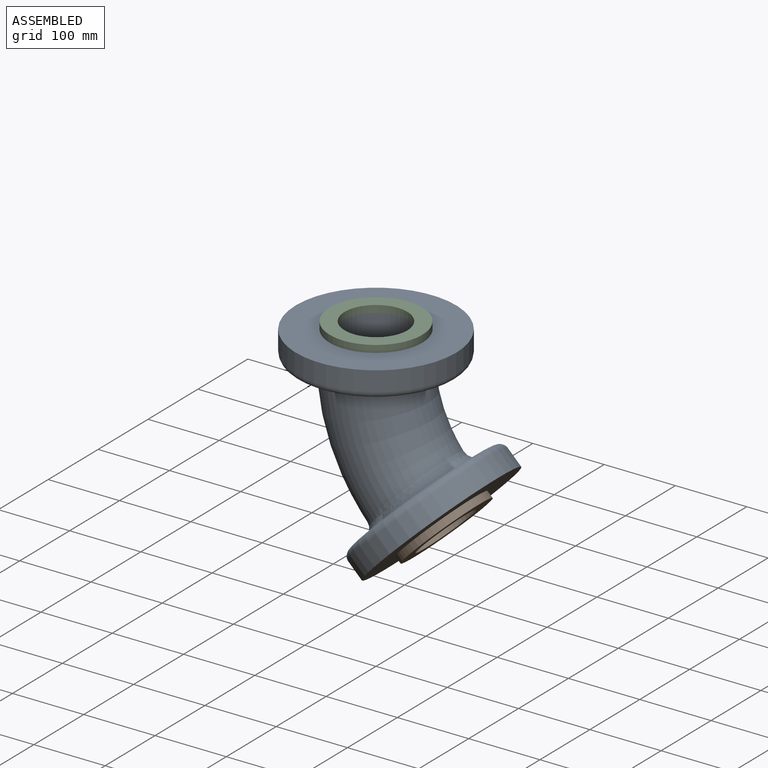
[diagram: assembled view]
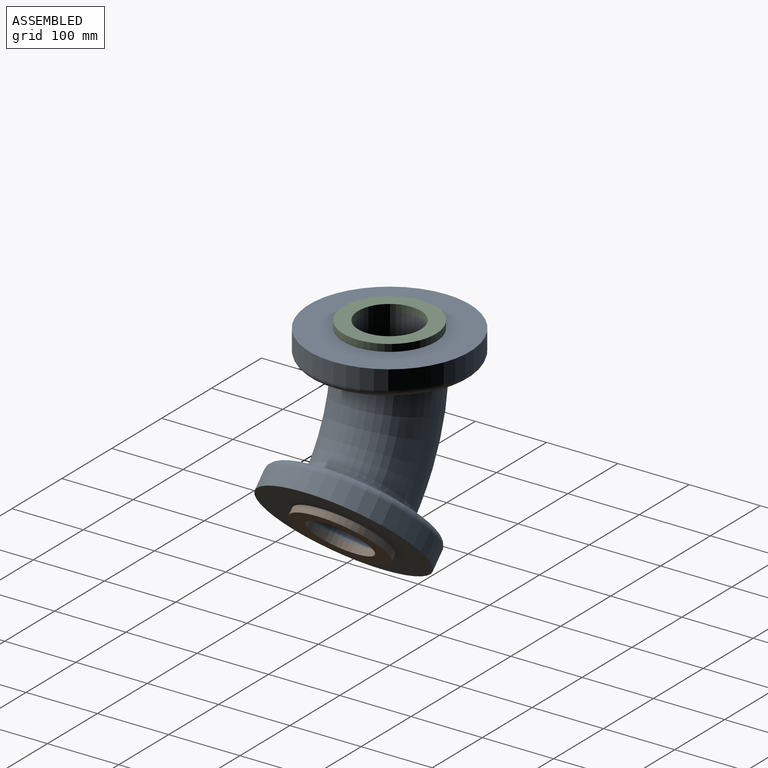
[diagram: assembled view, second angle]
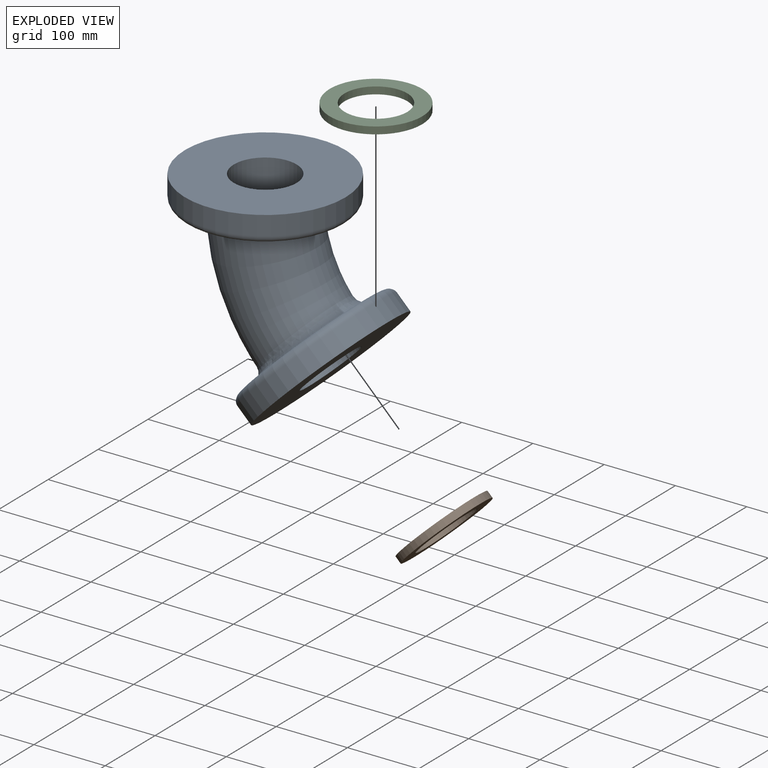
[diagram: exploded view]
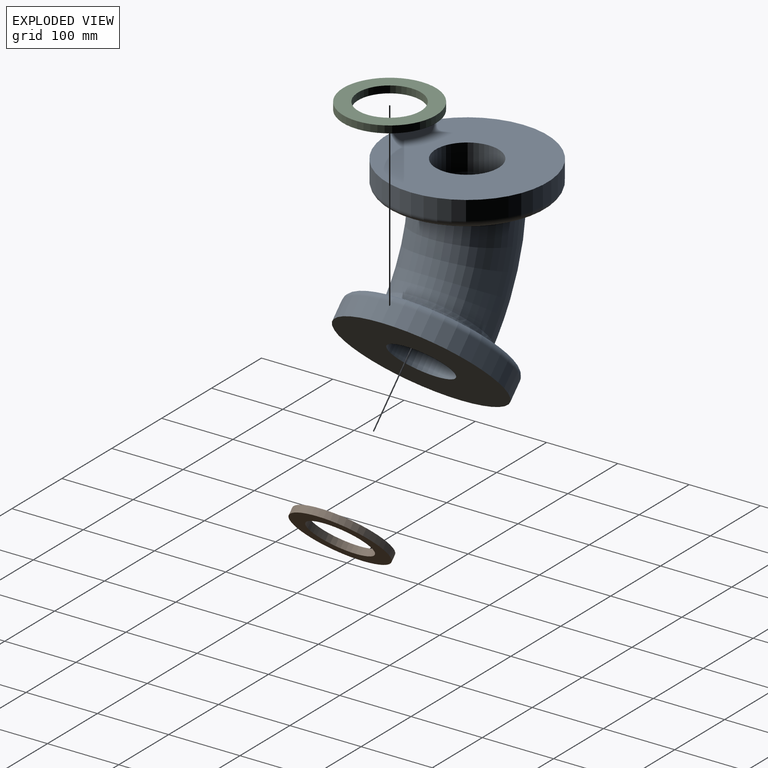
[diagram: exploded view, second angle]
ASSEMBLY  parts=3 mates=2
PART A: 14 faces, bbox 293.4x243.5x301.8 mm
  f0: torus R=225mm, axis (0,-1,0), area 48854.5mm2, adj f2,f7
  f1: torus R=225mm, axis (0,-1,0), area 62957.2mm2, adj f10,f11
  f2: cylinder r=44mm len=88mm, axis (0,0,-1), area 10229mm2, adj f0,f4
  f3: cylinder r=112.5mm len=225mm, axis (0,0,-1), area 19085.2mm2, adj f4,f13
  f4: plane 225x225mm, normal (0,0,1), area 33678.7mm2, adj f2,f3
  f5: plane 205x205mm, normal (0,0,-1), area 11054.1mm2, adj f10,f13
  f6: cylinder r=112.5mm len=225mm, axis (-0.71,0,0.71), area 19085.2mm2, adj f8,f12
  f7: cylinder r=44mm len=88.39mm, axis (-0.71,0,0.71), area 10229mm2, adj f0,f8
  f8: plane 225x159.1mm, normal (0.71,0,-0.71), area 33678.7mm2, adj f6,f7
  f9: plane 205x144.96mm, normal (-0.71,0,0.71), area 11047.5mm2, adj f11,f12
  f10: bspline ~167.46x167.05mm, area 11052.3mm2, adj f1,f5
  f11: bspline ~167.05x119.59mm, area 11052.3mm2, adj f1,f9
  f12: torus R=102.5mm, axis (0.71,0,-0.71), area 10744.7mm2, adj f6,f9
  f13: torus R=102.5mm, axis (0,0,1), area 10744.7mm2, adj f3,f5
PART B: 4 faces, bbox 99x130x99 mm
  f0: cylinder r=44mm len=88mm, axis (-0.71,0,0.71), area 2764.6mm2, adj f2,f3
  f1: cylinder r=65mm len=130mm, axis (-0.71,0,0.71), area 4084.1mm2, adj f2,f3
  f2: plane 130x91.92mm, normal (0.71,0,-0.71), area 7191.1mm2, adj f0,f1
  f3: plane 130x91.92mm, normal (-0.71,0,0.71), area 7191.1mm2, adj f0,f1
PART C: same geometry as B
PLACE A at identity
PLACE B at identity
PLACE C rot(axis=(0,1,0),45deg) t=(65.9,0,243.1)mm
MATE fastened B.f0 <-> A.f12  axis (-0.71,0,0.71) through (92.06,0,-185.26)mm
MATE fastened C.f0 <-> A.f2  axis (0,0,-1) through (0,0,37)mm
